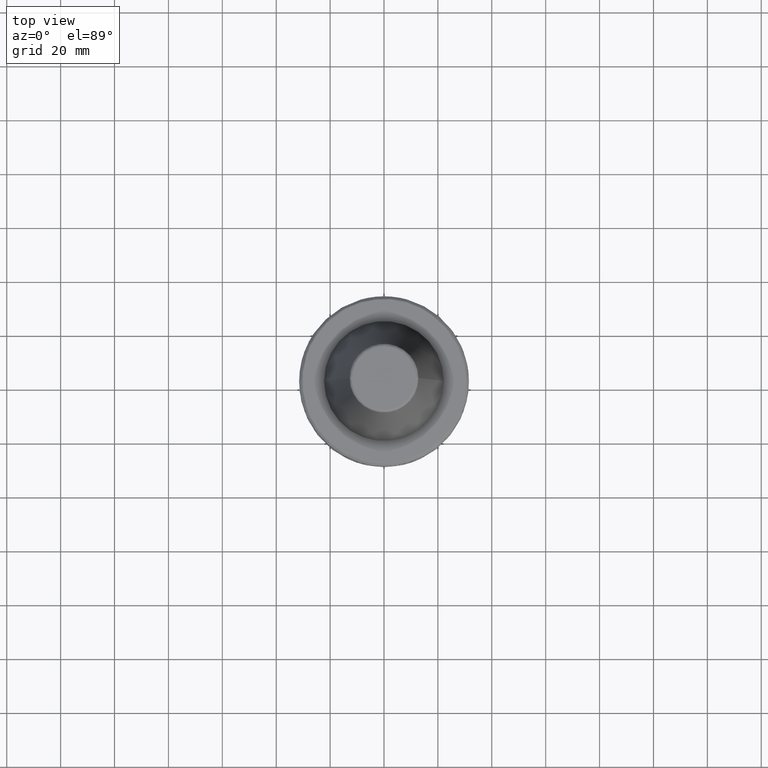
[diagram: clean part render]
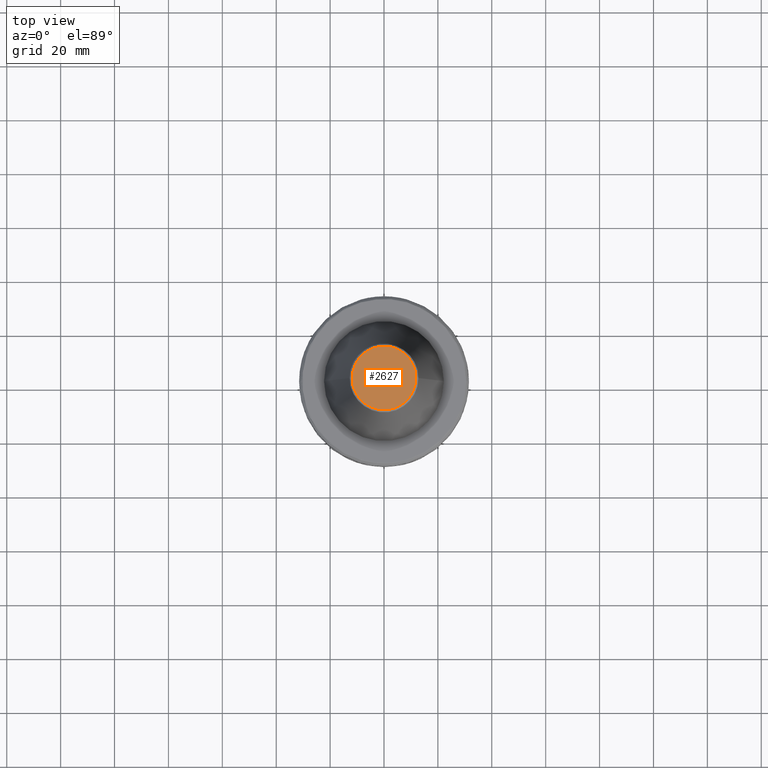
[diagram: same view with one face highlighted and labeled with its STEP entity id]
A machine part, top view. The second image highlights one B-rep face of the part: STEP entity #2627.
In plain terms, the highlighted planar face has unit normal (0, 0, 1).
Its self-contained STEP definition (entity closure, byte-faithful):
#266 = ORIENTED_EDGE ( 'NONE', *, *, #3771, .F. ) ;
#345 = ORIENTED_EDGE ( 'NONE', *, *, #3743, .F. ) ;
#373 = CARTESIAN_POINT ( 'NONE',  ( 11.82266671809057200, 0.0000000000000000000, 65.39999999982889300 ) ) ;
#392 = VERTEX_POINT ( 'NONE', #2427 ) ;
#495 = CARTESIAN_POINT ( 'NONE',  ( -11.82266672047680200, -23.64533344110907000, 65.39999999971483600 ) ) ;
#554 = CARTESIAN_POINT ( 'NONE',  ( -11.82266671809057200, 0.0000000000000000000, 65.39999999982889300 ) ) ;
#665 = CARTESIAN_POINT ( 'NONE',  ( -11.82266672047679300, 23.64533344110905600, 65.39999999971478000 ) ) ;
#1148 = CARTESIAN_POINT ( 'NONE',  ( -11.82266671809057200, 0.0000000000000000000, 65.39999999982889300 ) ) ;
#1455 = CARTESIAN_POINT ( 'NONE',  ( -11.96453872100000200, -11.96453872100000200, 65.40000000000002000 ) ) ;
#1498 = CARTESIAN_POINT ( 'NONE',  ( 11.82266672047680200, -23.64533344110907000, 65.39999999971483600 ) ) ;
#1769 = EDGE_LOOP ( 'NONE', ( #345, #266 ) ) ;
#2089 =( BOUNDED_CURVE ( )  B_SPLINE_CURVE ( 3, ( #373, #1498, #495, #1148 ),
 .UNSPECIFIED., .F., .F. ) 
 B_SPLINE_CURVE_WITH_KNOTS ( ( 4, 4 ),
 ( 0.0000000000000000000, 1.000000000000000000 ),
 .UNSPECIFIED. ) 
 CURVE ( )  GEOMETRIC_REPRESENTATION_ITEM ( )  RATIONAL_B_SPLINE_CURVE ( ( 0.9606698257068199100, 0.3202232752356064000, 0.3202232752356064000, 0.9606698257068199100 ) ) 
 REPRESENTATION_ITEM ( '' )  );
#2126 = FACE_OUTER_BOUND ( 'NONE', #1769, .T. ) ;
#2305 = DIRECTION ( 'NONE',  ( 0.0000000000000000000, 0.0000000000000000000, 1.000000000000000000 ) ) ;
#2310 = DIRECTION ( 'NONE',  ( 1.000000000000000000, 0.0000000000000000000, 0.0000000000000000000 ) ) ;
#2317 = VERTEX_POINT ( 'NONE', #2502 ) ;
#2427 = CARTESIAN_POINT ( 'NONE',  ( -11.82266671809057200, 0.0000000000000000000, 65.39999999982889300 ) ) ;
#2502 = CARTESIAN_POINT ( 'NONE',  ( 11.82266671809057200, 0.0000000000000000000, 65.39999999982889300 ) ) ;
#2627 = ADVANCED_FACE ( 'NONE', ( #2126 ), #3075, .T. ) ;
#2666 = CARTESIAN_POINT ( 'NONE',  ( 11.82266671809057200, 0.0000000000000000000, 65.39999999982889300 ) ) ;
#2673 = AXIS2_PLACEMENT_3D ( 'NONE', #1455, #2305, #2310 ) ;
#2888 = CARTESIAN_POINT ( 'NONE',  ( 11.82266672047679300, 23.64533344110905600, 65.39999999971478000 ) ) ;
#3075 = PLANE ( 'NONE',  #2673 ) ;
#3743 = EDGE_CURVE ( 'NONE', #392, #2317, #3844, .T. ) ;
#3771 = EDGE_CURVE ( 'NONE', #2317, #392, #2089, .T. ) ;
#3844 =( BOUNDED_CURVE ( )  B_SPLINE_CURVE ( 3, ( #554, #665, #2888, #2666 ),
 .UNSPECIFIED., .F., .F. ) 
 B_SPLINE_CURVE_WITH_KNOTS ( ( 4, 4 ),
 ( 0.0000000000000000000, 1.000000000000000000 ),
 .UNSPECIFIED. ) 
 CURVE ( )  GEOMETRIC_REPRESENTATION_ITEM ( )  RATIONAL_B_SPLINE_CURVE ( ( 0.9606698257068202500, 0.3202232752356066700, 0.3202232752356066700, 0.9606698257068202500 ) ) 
 REPRESENTATION_ITEM ( '' )  );